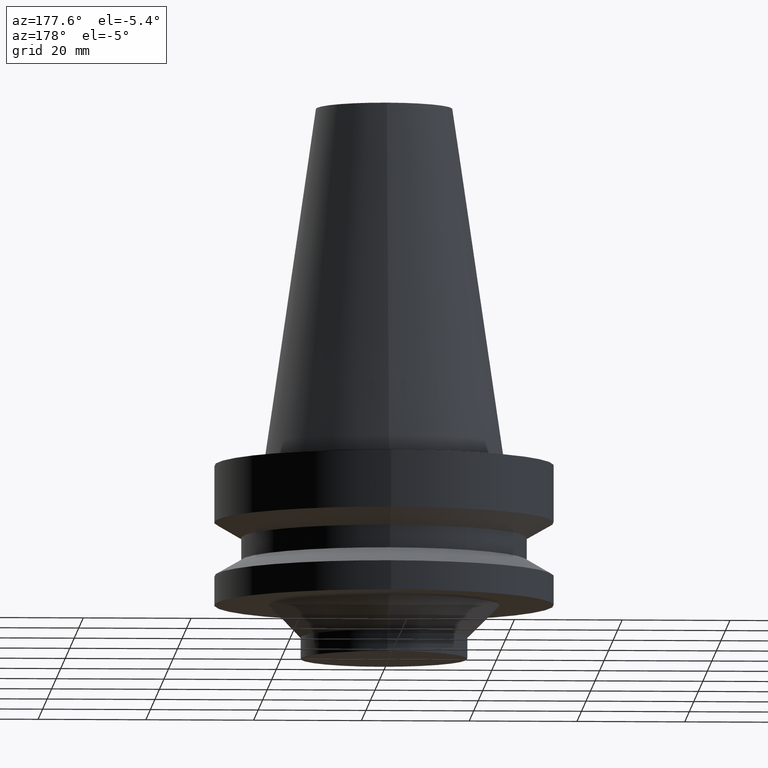
[diagram: clean part render]
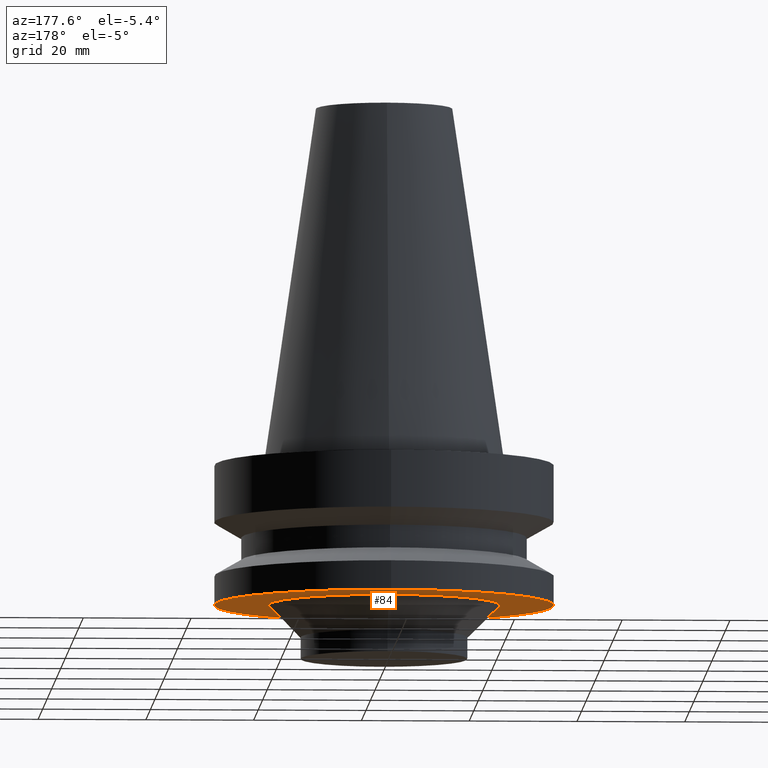
[diagram: same view with one face highlighted and labeled with its STEP entity id]
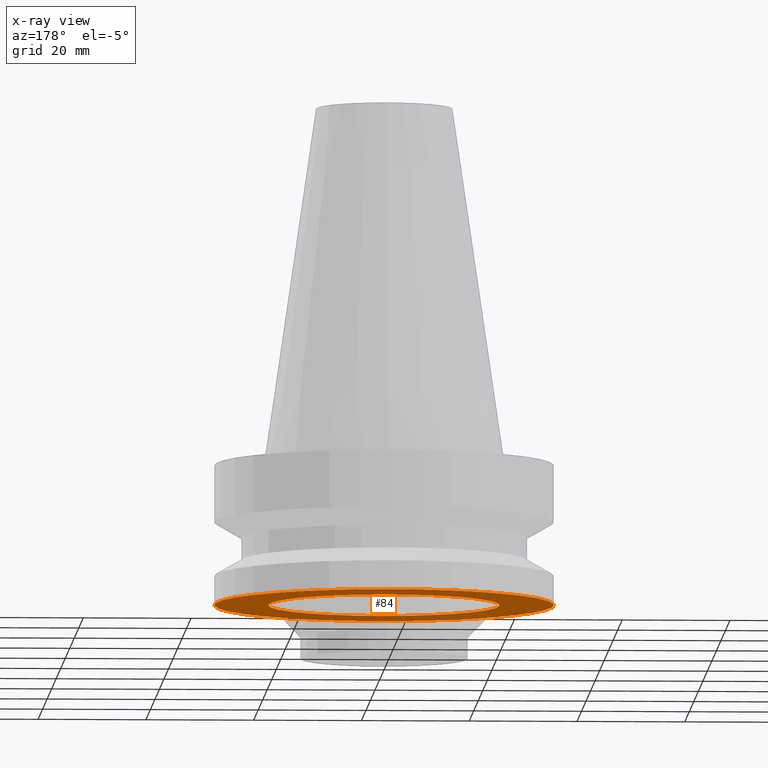
[diagram: x-ray of the same camera — body ghosted, the highlighted face saturated]
A machine part, auxiliary view. The second image highlights one B-rep face of the part: STEP entity #84.
The next image is the same camera in x-ray: the body ghosted, the highlighted face saturated — about 27% of this face is hidden behind the body in this view.
In plain terms, the highlighted planar face has unit normal (0, 0, -1).
Its self-contained STEP definition (entity closure, byte-faithful):
#84=ADVANCED_FACE('',(#115,#116),#117,.T.);
#115=FACE_BOUND('',#152,.T.);
#116=FACE_OUTER_BOUND('',#153,.T.);
#117=PLANE('',#154);
#152=EDGE_LOOP('',(#207));
#153=EDGE_LOOP('',(#208));
#154=AXIS2_PLACEMENT_3D('',#209,#210,#211);
#207=ORIENTED_EDGE('',*,*,#235,.F.);
#208=ORIENTED_EDGE('',*,*,#234,.T.);
#209=CARTESIAN_POINT('',(1.65327317884893E-015,26.5,-27.0));
#210=DIRECTION('',(6.12323399573677E-017,1.22464679914735E-016,-1.0));
#211=DIRECTION('',(-1.23259516440783E-032,1.0,1.22464679914735E-016));
#234=EDGE_CURVE('',#254,#254,#255,.T.);
#235=EDGE_CURVE('',#256,#256,#257,.T.);
#254=VERTEX_POINT('',#278);
#255=CIRCLE('',#279,31.5);
#256=VERTEX_POINT('',#280);
#257=CIRCLE('',#281,21.5);
#278=CARTESIAN_POINT('',(1.65327317884893E-015,31.5,-27.0));
#279=AXIS2_PLACEMENT_3D('',#310,#311,#312);
#280=CARTESIAN_POINT('',(1.65327317884893E-015,21.5,-27.0));
#281=AXIS2_PLACEMENT_3D('',#313,#314,#315);
#310=CARTESIAN_POINT('',(1.65327317884893E-015,3.30654635769785E-015,-27.0));
#311=DIRECTION('',(6.12323399573677E-017,1.22464679914735E-016,-1.0));
#312=DIRECTION('',(-1.23259516440783E-032,1.0,1.22464679914735E-016));
#313=CARTESIAN_POINT('',(1.65327317884893E-015,3.30654635769785E-015,-27.0));
#314=DIRECTION('',(6.12323399573677E-017,1.22464679914735E-016,-1.0));
#315=DIRECTION('',(-1.23259516440783E-032,1.0,1.22464679914735E-016));